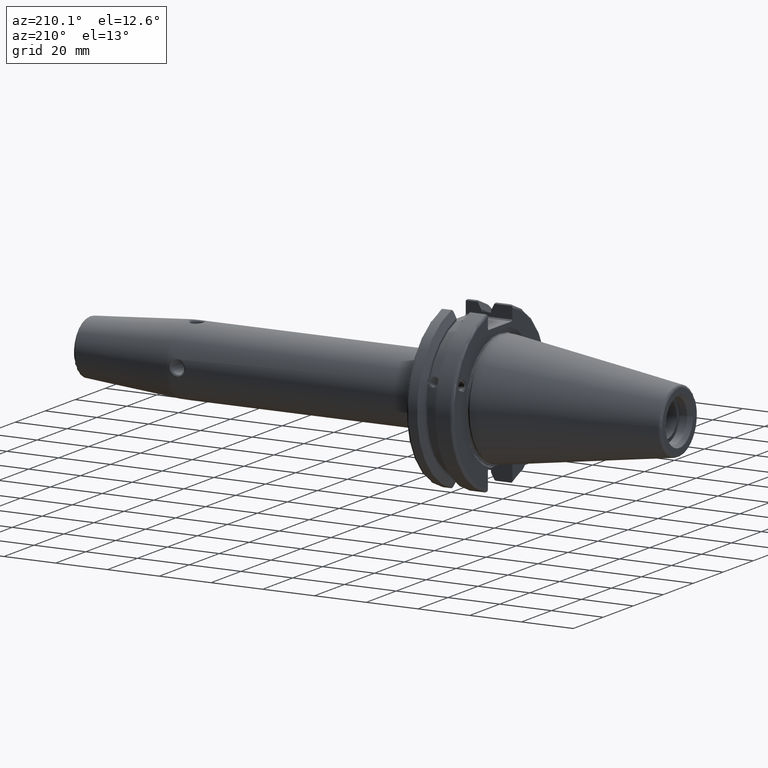
[diagram: clean part render]
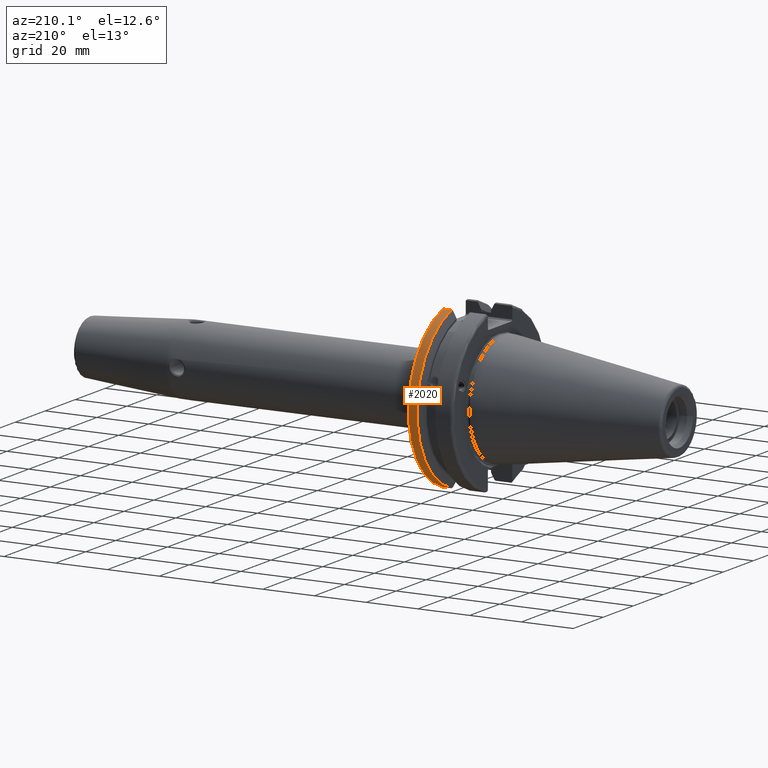
[diagram: same view with one face highlighted and labeled with its STEP entity id]
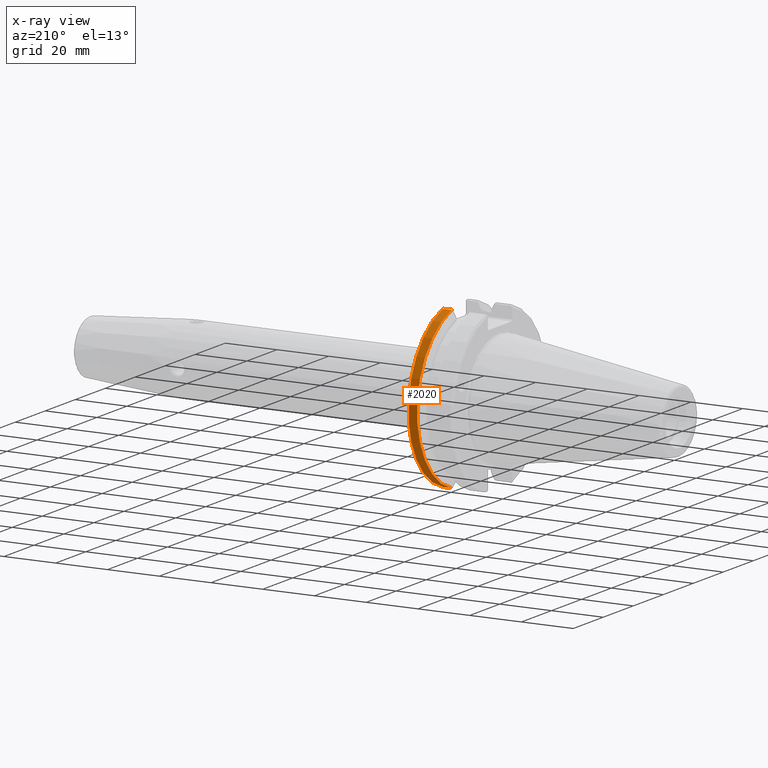
[diagram: x-ray of the same camera — body ghosted, the highlighted face saturated]
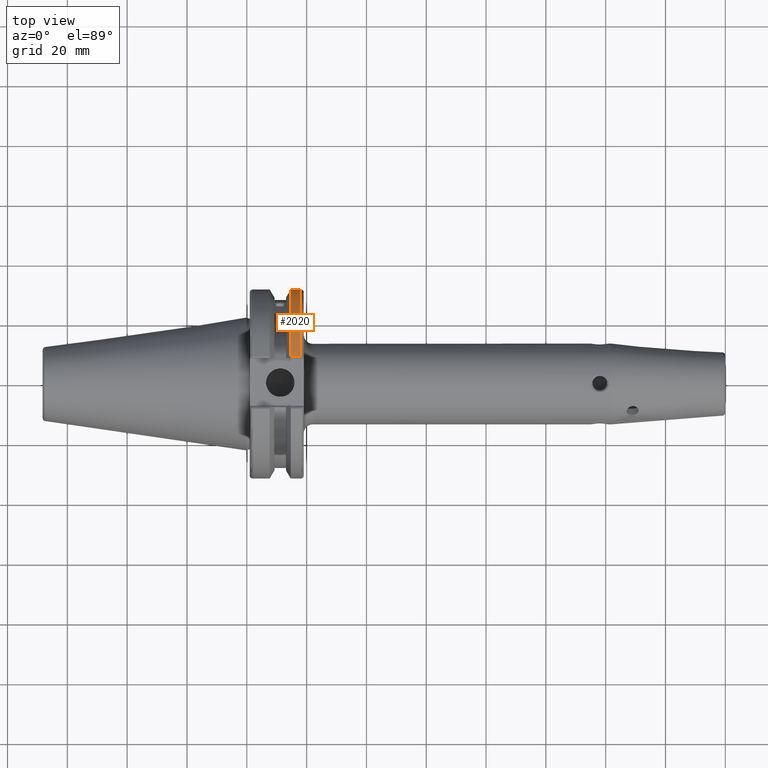
[diagram: same view with one face highlighted and labeled with its STEP entity id]
A machine part, auxiliary view. The second image highlights one B-rep face of the part: STEP entity #2020.
The next image is the same camera in x-ray: the body ghosted, the highlighted face saturated — about 0% of this face is hidden behind the body in this view.
A second angle (top view) of the same face is appended — the face is thin or edge-on in the first view.
In plain terms, the highlighted cylindrical surface (partial cylindrical patch) has radius 31.75 mm, axis along (1, 0, 0).
Its self-contained STEP definition (entity closure, byte-faithful):
#241=FACE_OUTER_BOUND('',#374,.T.);
#374=EDGE_LOOP('',(#1795,#1796,#1797,#1798));
#468=LINE('',#4427,#585);
#508=LINE('',#4657,#625);
#585=VECTOR('',#2638,10.);
#625=VECTOR('',#2752,10.);
#692=CIRCLE('',#2205,31.75);
#706=CIRCLE('',#2245,31.75);
#924=VERTEX_POINT('',#4401);
#925=VERTEX_POINT('',#4410);
#927=VERTEX_POINT('',#4423);
#972=VERTEX_POINT('',#4656);
#1182=EDGE_CURVE('',#924,#925,#692,.T.);
#1186=EDGE_CURVE('',#927,#924,#468,.T.);
#1259=EDGE_CURVE('',#925,#972,#508,.T.);
#1261=EDGE_CURVE('',#927,#972,#706,.T.);
#1795=ORIENTED_EDGE('',*,*,#1182,.F.);
#1796=ORIENTED_EDGE('',*,*,#1186,.F.);
#1797=ORIENTED_EDGE('',*,*,#1261,.T.);
#1798=ORIENTED_EDGE('',*,*,#1259,.F.);
#1923=CYLINDRICAL_SURFACE('',#2244,31.75);
#2020=ADVANCED_FACE('',(#241),#1923,.T.);
#2205=AXIS2_PLACEMENT_3D('',#4411,#2633,#2634);
#2244=AXIS2_PLACEMENT_3D('',#4661,#2753,#2754);
#2245=AXIS2_PLACEMENT_3D('',#4662,#2755,#2756);
#2633=DIRECTION('center_axis',(1.,0.,0.));
#2634=DIRECTION('ref_axis',(0.,1.,-6.12323399573676E-17));
#2638=DIRECTION('',(1.,0.,0.));
#2752=DIRECTION('',(-1.,0.,0.));
#2753=DIRECTION('center_axis',(1.,0.,0.));
#2754=DIRECTION('ref_axis',(0.,1.,0.));
#2755=DIRECTION('center_axis',(1.,0.,0.));
#2756=DIRECTION('ref_axis',(0.,0.,-1.));
#4401=CARTESIAN_POINT('',(18.05,8.67204822802685,-30.5427254764662));
#4410=CARTESIAN_POINT('',(18.05,8.67204822802685,30.5427254764662));
#4411=CARTESIAN_POINT('Origin',(18.05,0.,0.));
#4423=CARTESIAN_POINT('',(14.7021667690756,8.67204822802685,-30.5427254764662));
#4427=CARTESIAN_POINT('',(16.8760833845378,8.67204822802685,-30.5427254764662));
#4656=CARTESIAN_POINT('',(14.7021667690756,8.67204822802685,30.5427254764662));
#4657=CARTESIAN_POINT('',(16.8760833845378,8.67204822802685,30.5427254764662));
#4661=CARTESIAN_POINT('Origin',(16.8760833845378,0.,0.));
#4662=CARTESIAN_POINT('Origin',(14.7021667690756,0.,0.));